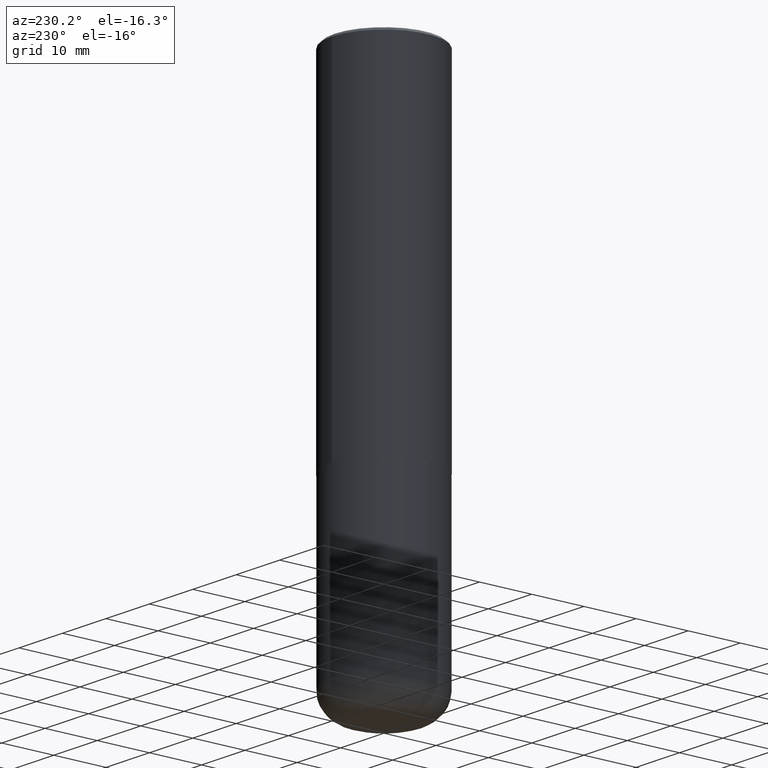
[diagram: clean part render]
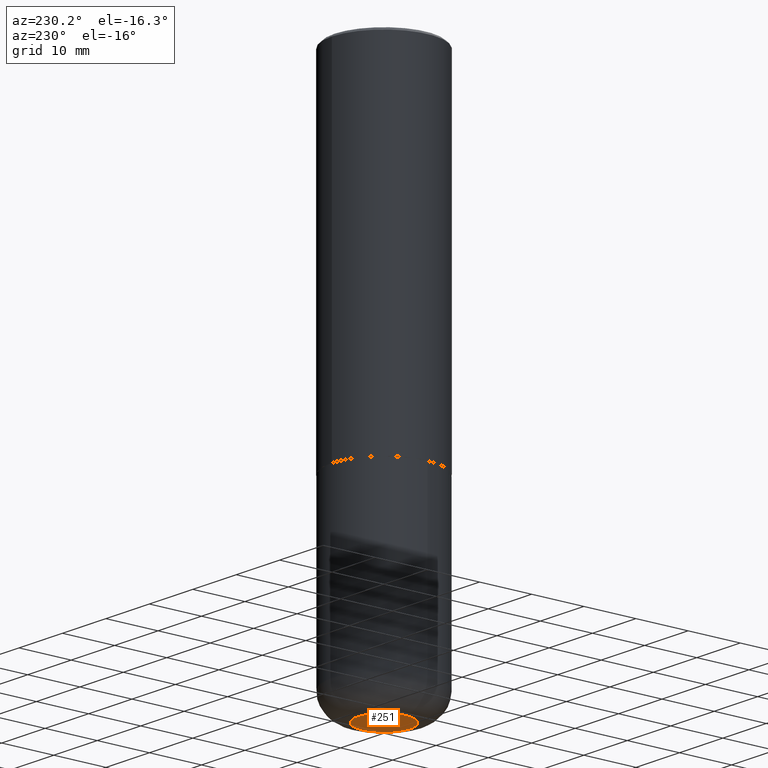
[diagram: same view with one face highlighted and labeled with its STEP entity id]
A machine part, auxiliary view. The second image highlights one B-rep face of the part: STEP entity #251.
In plain terms, the highlighted planar face has unit normal (0, -0, -1).
Its self-contained STEP definition (entity closure, byte-faithful):
#24 = EDGE_CURVE ( 'NONE', #306, #131, #197, .T. ) ;
#27 = CIRCLE ( 'NONE', #43, 0.1968000000000000582 ) ;
#33 = DIRECTION ( 'NONE',  ( 2.438088387897960049E-29, -3.491481338843145188E-15, -1.000000000000000000 ) ) ;
#43 = AXIS2_PLACEMENT_3D ( 'NONE', #205, #210, #342 ) ;
#52 = FACE_OUTER_BOUND ( 'NONE', #172, .T. ) ;
#54 = ORIENTED_EDGE ( 'NONE', *, *, #24, .F. ) ;
#100 = ORIENTED_EDGE ( 'NONE', *, *, #394, .F. ) ;
#111 = AXIS2_PLACEMENT_3D ( 'NONE', #359, #160, #195 ) ;
#130 = CARTESIAN_POINT ( 'NONE',  ( 1.795080631781638397E-28, -2.928439843866505824E-15, -4.094500000000000028 ) ) ;
#131 = VERTEX_POINT ( 'NONE', #242 ) ;
#160 = DIRECTION ( 'NONE',  ( -2.445468806185136597E-29, 3.491481338843145583E-15, 1.000000000000000000 ) ) ;
#172 = EDGE_LOOP ( 'NONE', ( #54, #100 ) ) ;
#195 = DIRECTION ( 'NONE',  ( 1.000000000000000000, -6.982962677686269866E-15, 0.000000000000000000 ) ) ;
#197 = CIRCLE ( 'NONE', #111, 0.1968000000000000582 ) ;
#205 = CARTESIAN_POINT ( 'NONE',  ( 1.001297202692504102E-28, -1.429587034189325834E-14, -4.094500000000000028 ) ) ;
#210 = DIRECTION ( 'NONE',  ( -2.445468806185136597E-29, 3.491481338843145583E-15, 1.000000000000000000 ) ) ;
#220 = AXIS2_PLACEMENT_3D ( 'NONE', #130, #33, #291 ) ;
#242 = CARTESIAN_POINT ( 'NONE',  ( -0.1968000000000000582, -1.185425657675245696E-14, -4.094500000000000028 ) ) ;
#250 = PLANE ( 'NONE',  #220 ) ;
#251 = ADVANCED_FACE ( 'NONE', ( #52 ), #250, .T. ) ;
#282 = CARTESIAN_POINT ( 'NONE',  ( 0.1968000000000000582, -1.567011739686191643E-14, -4.094500000000000028 ) ) ;
#291 = DIRECTION ( 'NONE',  ( -1.000000000000000000, 6.982962677686265922E-15, -4.876176775795935793E-29 ) ) ;
#306 = VERTEX_POINT ( 'NONE', #282 ) ;
#342 = DIRECTION ( 'NONE',  ( 1.000000000000000000, -6.982962677686269866E-15, 0.000000000000000000 ) ) ;
#359 = CARTESIAN_POINT ( 'NONE',  ( 1.001297202692504102E-28, -1.429587034189325834E-14, -4.094500000000000028 ) ) ;
#394 = EDGE_CURVE ( 'NONE', #131, #306, #27, .T. ) ;